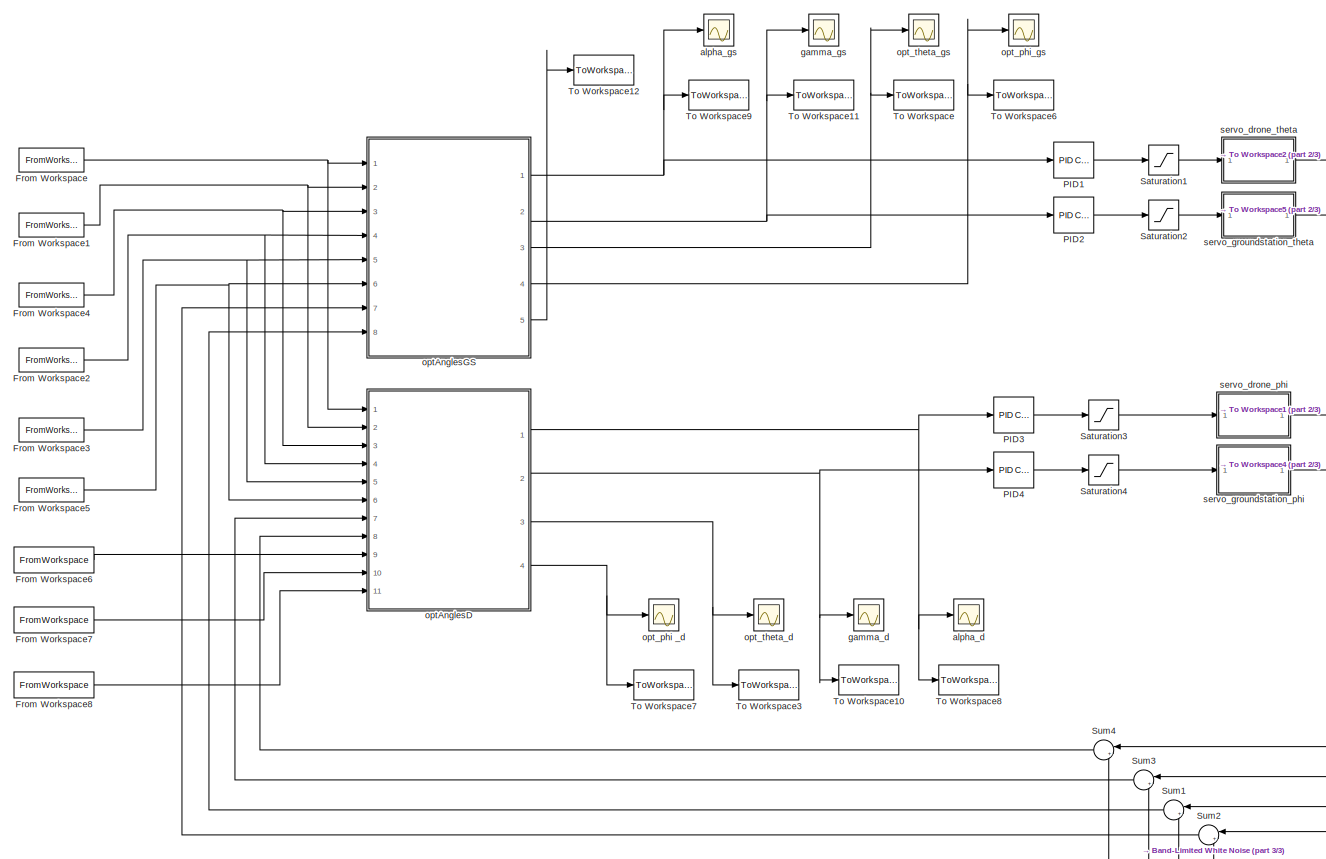
[diagram: root canvas - part 1/3, most of the canvas]
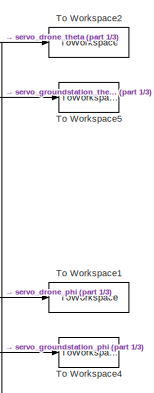
[diagram: root canvas - part 2/3, middle right region]
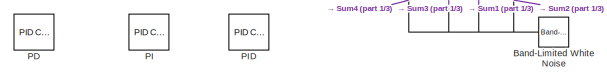
[diagram: root canvas - part 3/3, bottom center region]
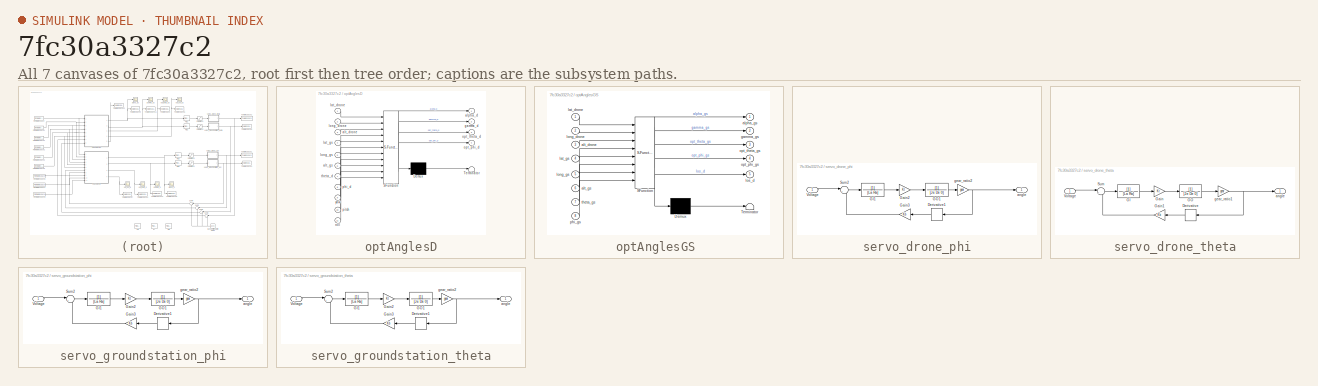
[diagram: thumbnail index - all 7 canvases of the model, root first then tree order]
MODEL slx_7fc30a3327c2
KIND model
CONFIG AbsTol = auto
CONFIG FixedStep = auto
CONFIG MaxStep = auto
CONFIG MinStep = auto
CONFIG RelTol = 1e-3
CONFIG SampleTimeConstraint = Unconstrained
CONFIG Solver = VariableStepAuto
CONFIG SolverMode = Auto
CONFIG SolverName = VariableStepAuto
CONFIG StartTime = 0.0
CONFIG StopTime = 10.0
BLOCK [Reference] Band-Limited White Noise  REF=simulink/Sources/Band-Limited
White Noise
  Ports = [0, 1]
  SourceBlock = simulink/Sources/Band-Limited\nWhite Noise
  SourceType = Band-Limited White Noise.
BLOCK [FromWorkspace] From Workspace
  SampleTime = 1
  VariableName = [time' lat_drone']
  ZeroCross = on
BLOCK [FromWorkspace] From Workspace1
  OutDataTypeStr = double
  SampleTime = 1
  VariableName = [time' long_drone']
  ZeroCross = on
BLOCK [FromWorkspace] From Workspace2
  SampleTime = 1
  VariableName = [time' lat_gs']
  ZeroCross = on
BLOCK [FromWorkspace] From Workspace3
  OutDataTypeStr = double
  SampleTime = 1
  VariableName = [time' long_gs']
  ZeroCross = on
BLOCK [FromWorkspace] From Workspace4
  OutDataTypeStr = double
  SampleTime = 1
  VariableName = [time' alt_drone']
  ZeroCross = on
BLOCK [FromWorkspace] From Workspace5
  OutDataTypeStr = double
  SampleTime = 1
  VariableName = [time' alt_gs']
  ZeroCross = on
BLOCK [FromWorkspace] From Workspace6
  SampleTime = 1
  VariableName = [time' yawAngle']
  ZeroCross = on
BLOCK [FromWorkspace] From Workspace7
  SampleTime = 1
  VariableName = [time' pitchAngle']
  ZeroCross = on
BLOCK [FromWorkspace] From Workspace8
  SampleTime = 1
  VariableName = [time' rollAngle']
  ZeroCross = on
BLOCK [Reference] PD  REF=simulink/Continuous/PID Controller
  Ports = [1, 1]
  SourceBlock = simulink/Continuous/PID Controller
  SourceType = PID 1dof
BLOCK [Reference] PI  REF=simulink/Continuous/PID Controller
  Ports = [1, 1]
  SourceBlock = simulink/Continuous/PID Controller
  SourceType = PID 1dof
BLOCK [Reference] PID  REF=simulink/Continuous/PID Controller
  Ports = [1, 1]
  SourceBlock = simulink/Continuous/PID Controller
  SourceType = PID 1dof
BLOCK [Reference] PID1  REF=simulink/Continuous/PID Controller
  Ports = [1, 1]
  SourceBlock = simulink/Continuous/PID Controller
  SourceType = PID 1dof
BLOCK [Reference] PID2  REF=simulink/Continuous/PID Controller
  Ports = [1, 1]
  SourceBlock = simulink/Continuous/PID Controller
  SourceType = PID 1dof
BLOCK [Reference] PID3  REF=simulink/Continuous/PID Controller
  Ports = [1, 1]
  SourceBlock = simulink/Continuous/PID Controller
  SourceType = PID 1dof
BLOCK [Reference] PID4  REF=simulink/Continuous/PID Controller
  Ports = [1, 1]
  SourceBlock = simulink/Continuous/PID Controller
  SourceType = PID 1dof
BLOCK [Saturate] Saturation1
  InputPortMap = u0
  LowerLimit = lowSat
  Ports = [1, 1]
  UpperLimit = upSat
BLOCK [Saturate] Saturation2
  InputPortMap = u0
  LowerLimit = lowSat
  Ports = [1, 1]
  UpperLimit = upSat
BLOCK [Saturate] Saturation3
  InputPortMap = u0
  LowerLimit = lowSat
  Ports = [1, 1]
  UpperLimit = upSat
BLOCK [Saturate] Saturation4
  InputPortMap = u0
  LowerLimit = lowSat
  Ports = [1, 1]
  UpperLimit = upSat
BLOCK [Sum] Sum1
  IconShape = round
  InputSameDT = off
  Inputs = |++
  OutDataTypeStr = Inherit: Inherit via internal rule
  Ports = [2, 1]
  SaturateOnIntegerOverflow = off
BLOCK [Sum] Sum2
  IconShape = round
  InputSameDT = off
  Inputs = |++
  OutDataTypeStr = Inherit: Inherit via internal rule
  Ports = [2, 1]
  SaturateOnIntegerOverflow = off
BLOCK [Sum] Sum3
  IconShape = round
  InputSameDT = off
  Inputs = |++
  OutDataTypeStr = Inherit: Inherit via internal rule
  Ports = [2, 1]
  SaturateOnIntegerOverflow = off
BLOCK [Sum] Sum4
  IconShape = round
  InputSameDT = off
  Inputs = |++
  OutDataTypeStr = Inherit: Inherit via internal rule
  Ports = [2, 1]
  SaturateOnIntegerOverflow = off
BLOCK [ToWorkspace] To Workspace
  FixptAsFi = on
  MaxDataPoints = inf
  Ports = [1]
  SampleTime = -1
  Save2DSignal = 3-D array (concatenate along third dimension)
  SaveFormat = Timeseries
  VariableName = opt_theta_gs
BLOCK [ToWorkspace] To Workspace1
  FixptAsFi = on
  MaxDataPoints = inf
  Ports = [1]
  SampleTime = -1
  Save2DSignal = 3-D array (concatenate along third dimension)
  SaveFormat = Timeseries
  VariableName = theta_d_vec
BLOCK [ToWorkspace] To Workspace10
  FixptAsFi = on
  MaxDataPoints = inf
  Ports = [1]
  SampleTime = -1
  Save2DSignal = 3-D array (concatenate along third dimension)
  SaveFormat = Timeseries
  VariableName = gamma_d
BLOCK [ToWorkspace] To Workspace11
  FixptAsFi = on
  MaxDataPoints = inf
  Ports = [1]
  SampleTime = -1
  Save2DSignal = 3-D array (concatenate along third dimension)
  SaveFormat = Timeseries
  VariableName = gamma_gs
BLOCK [ToWorkspace] To Workspace12
  FixptAsFi = on
  MaxDataPoints = inf
  Ports = [1]
  SampleTime = -1
  Save2DSignal = 3-D array (concatenate along third dimension)
  SaveFormat = Timeseries
  VariableName = los_d_vec
BLOCK [ToWorkspace] To Workspace2
  FixptAsFi = on
  MaxDataPoints = inf
  Ports = [1]
  SampleTime = -1
  Save2DSignal = 3-D array (concatenate along third dimension)
  SaveFormat = Timeseries
  VariableName = theta_gs_vec
BLOCK [ToWorkspace] To Workspace3
  FixptAsFi = on
  MaxDataPoints = inf
  Ports = [1]
  SampleTime = -1
  Save2DSignal = 3-D array (concatenate along third dimension)
  SaveFormat = Timeseries
  VariableName = opt_theta_d
BLOCK [ToWorkspace] To Workspace4
  FixptAsFi = on
  MaxDataPoints = inf
  Ports = [1]
  SampleTime = -1
  Save2DSignal = 3-D array (concatenate along third dimension)
  SaveFormat = Timeseries
  VariableName = phi_d_vec
BLOCK [ToWorkspace] To Workspace5
  FixptAsFi = on
  MaxDataPoints = inf
  Ports = [1]
  SampleTime = -1
  Save2DSignal = 3-D array (concatenate along third dimension)
  SaveFormat = Timeseries
  VariableName = phi_gs_vec
BLOCK [ToWorkspace] To Workspace6
  FixptAsFi = on
  MaxDataPoints = inf
  Ports = [1]
  SampleTime = -1
  Save2DSignal = 3-D array (concatenate along third dimension)
  SaveFormat = Timeseries
  VariableName = opt_phi_gs
BLOCK [ToWorkspace] To Workspace7
  FixptAsFi = on
  MaxDataPoints = inf
  Ports = [1]
  SampleTime = -1
  Save2DSignal = 3-D array (concatenate along third dimension)
  SaveFormat = Timeseries
  VariableName = opt_phi_d
BLOCK [ToWorkspace] To Workspace8
  FixptAsFi = on
  MaxDataPoints = inf
  Ports = [1]
  SampleTime = -1
  Save2DSignal = 3-D array (concatenate along third dimension)
  SaveFormat = Timeseries
  VariableName = alpha_d
BLOCK [ToWorkspace] To Workspace9
  FixptAsFi = on
  MaxDataPoints = inf
  Ports = [1]
  SampleTime = -1
  Save2DSignal = 3-D array (concatenate along third dimension)
  SaveFormat = Timeseries
  VariableName = alpha_gs
BLOCK [Scope] alpha_d
  Ports = [1]
  ScopeSpecificationString = C++SS(StrPVP('SaveName','ScopeData1'),StrPVP('LimitDataPoints','on'),StrPVP('DataFormat','Array'),StrPVP('Decimation','1'),StrPVP('BlockParamSampleInput','off'),StrPVP('SaveName','ScopeData1'),StrPVP('SaveName','ScopeData1'))
BLOCK [Scope] alpha_gs 
  Ports = [1]
  ScopeSpecificationString = C++SS(StrPVP('SaveName','ScopeData2'),StrPVP('LimitDataPoints','on'),StrPVP('DataFormat','Array'),StrPVP('Decimation','1'),StrPVP('BlockParamSampleInput','off'),StrPVP('SaveName','ScopeData2'),StrPVP('SaveName','ScopeData2'))
BLOCK [Scope] gamma_d
  Ports = [1]
  ScopeSpecificationString = C++SS(StrPVP('SaveName','ScopeData4'),StrPVP('LimitDataPoints','on'),StrPVP('DataFormat','Array'),StrPVP('Decimation','1'),StrPVP('BlockParamSampleInput','off'),StrPVP('SaveName','ScopeData3'),StrPVP('SaveName','ScopeData3'),StrPVP('SaveName','ScopeData3'))
BLOCK [Scope] gamma_gs
  Ports = [1]
  ScopeSpecificationString = C++SS(StrPVP('SaveName','ScopeData4'),StrPVP('SaveName','ScopeData5'),StrPVP('LimitDataPoints','on'),StrPVP('DataFormat','Array'),StrPVP('Decimation','1'),StrPVP('BlockParamSampleInput','off'),StrPVP('SaveName','ScopeData4'),StrPVP('SaveName','ScopeData4'),StrPVP('SaveName','ScopeData4'))
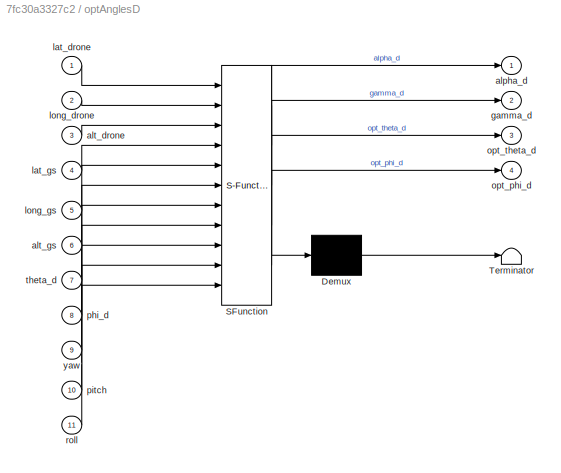
BLOCK [SubSystem] optAnglesD
  ErrorFcn = Stateflow.Translate.translate
  PermitHierarchicalResolution = ExplicitOnly
  Ports = [11, 4]
  RequestExecContextInheritance = off
  SFBlockType = MATLAB Function
  TreatAsAtomicUnit = on
  Variant = off
BLOCK [Demux] optAnglesD/ Demux 
  Outputs = 1
  Ports = [1, 1]
BLOCK [S-Function] optAnglesD/ SFunction 
  EnableBusSupport = on
  FunctionName = sf_sfun
  PortCounts = [11 5]
  Ports = [11, 5]
  SFunctionDeploymentMode = off
  Tag = Stateflow S-Function controller_v4 2
BLOCK [Terminator] optAnglesD/ Terminator 
BLOCK [Outport] optAnglesD/alpha_d
  IconDisplay = Port number
BLOCK [Inport] optAnglesD/alt_drone
  IconDisplay = Port number
  Port = 3
BLOCK [Inport] optAnglesD/alt_gs
  IconDisplay = Port number
  Port = 6
BLOCK [Outport] optAnglesD/gamma_d
  IconDisplay = Port number
  Port = 2
BLOCK [Inport] optAnglesD/lat_drone
  IconDisplay = Port number
BLOCK [Inport] optAnglesD/lat_gs
  IconDisplay = Port number
  Port = 4
BLOCK [Inport] optAnglesD/long_drone
  IconDisplay = Port number
  Port = 2
BLOCK [Inport] optAnglesD/long_gs
  IconDisplay = Port number
  Port = 5
BLOCK [Outport] optAnglesD/opt_phi_d
  IconDisplay = Port number
  Port = 4
BLOCK [Outport] optAnglesD/opt_theta_d
  IconDisplay = Port number
  Port = 3
BLOCK [Inport] optAnglesD/phi_d
  IconDisplay = Port number
  Port = 8
BLOCK [Inport] optAnglesD/pitch
  IconDisplay = Port number
  Port = 10
BLOCK [Inport] optAnglesD/roll
  IconDisplay = Port number
  Port = 11
BLOCK [Inport] optAnglesD/theta_d
  IconDisplay = Port number
  Port = 7
BLOCK [Inport] optAnglesD/yaw
  IconDisplay = Port number
  Port = 9
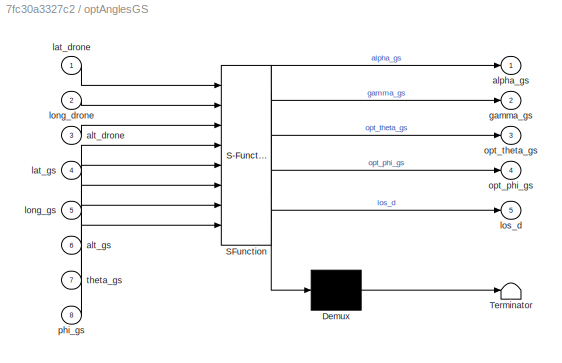
BLOCK [SubSystem] optAnglesGS 
  ErrorFcn = Stateflow.Translate.translate
  PermitHierarchicalResolution = ExplicitOnly
  Ports = [8, 5]
  RequestExecContextInheritance = off
  SFBlockType = MATLAB Function
  TreatAsAtomicUnit = on
  Variant = off
BLOCK [Demux] optAnglesGS / Demux 
  Outputs = 1
  Ports = [1, 1]
BLOCK [S-Function] optAnglesGS / SFunction 
  EnableBusSupport = on
  FunctionName = sf_sfun
  PortCounts = [8 6]
  Ports = [8, 6]
  SFunctionDeploymentMode = off
  Tag = Stateflow S-Function controller_v4 1
BLOCK [Terminator] optAnglesGS / Terminator 
BLOCK [Outport] optAnglesGS /alpha_gs
  IconDisplay = Port number
BLOCK [Inport] optAnglesGS /alt_drone
  IconDisplay = Port number
  Port = 3
BLOCK [Inport] optAnglesGS /alt_gs
  IconDisplay = Port number
  Port = 6
BLOCK [Outport] optAnglesGS /gamma_gs
  IconDisplay = Port number
  Port = 2
BLOCK [Inport] optAnglesGS /lat_drone
  IconDisplay = Port number
BLOCK [Inport] optAnglesGS /lat_gs
  IconDisplay = Port number
  Port = 4
BLOCK [Inport] optAnglesGS /long_drone
  IconDisplay = Port number
  Port = 2
BLOCK [Inport] optAnglesGS /long_gs
  IconDisplay = Port number
  Port = 5
BLOCK [Outport] optAnglesGS /los_d
  IconDisplay = Port number
  Port = 5
BLOCK [Outport] optAnglesGS /opt_phi_gs
  IconDisplay = Port number
  Port = 4
BLOCK [Outport] optAnglesGS /opt_theta_gs
  IconDisplay = Port number
  Port = 3
BLOCK [Inport] optAnglesGS /phi_gs
  IconDisplay = Port number
  Port = 8
BLOCK [Inport] optAnglesGS /theta_gs
  IconDisplay = Port number
  Port = 7
BLOCK [Scope] opt_phi _d
  Ports = [1]
  ScopeSpecificationString = C++SS(StrPVP('SaveName','ScopeData1'),StrPVP('SaveName','ScopeData2'),StrPVP('LimitDataPoints','on'),StrPVP('DataFormat','Array'),StrPVP('Decimation','1'),StrPVP('BlockParamSampleInput','off'),StrPVP('SaveName','ScopeData5'),StrPVP('SaveName','ScopeData5'),StrPVP('SaveName','ScopeData5'))
BLOCK [Scope] opt_phi_gs
  Ports = [1]
  ScopeSpecificationString = C++SS(StrPVP('SaveName','ScopeData3'),StrPVP('LimitDataPoints','on'),StrPVP('DataFormat','Array'),StrPVP('Decimation','1'),StrPVP('BlockParamSampleInput','off'),StrPVP('SaveName','ScopeData6'),StrPVP('SaveName','ScopeData6'),StrPVP('SaveName','ScopeData6'))
BLOCK [Scope] opt_theta_d 
  Ports = [1]
  ScopeSpecificationString = C++SS(StrPVP('SaveName','ScopeData1'),StrPVP('LimitDataPoints','on'),StrPVP('DataFormat','Array'),StrPVP('Decimation','1'),StrPVP('BlockParamSampleInput','off'),StrPVP('SaveName','ScopeData7'),StrPVP('SaveName','ScopeData7'),StrPVP('SaveName','ScopeData7'))
BLOCK [Scope] opt_theta_gs
  Ports = [1]
  ScopeSpecificationString = C++SS(StrPVP('SaveName','ScopeData'),StrPVP('LimitDataPoints','on'),StrPVP('DataFormat','Array'),StrPVP('Decimation','1'),StrPVP('BlockParamSampleInput','off'),StrPVP('SaveName','ScopeData'),StrPVP('SaveName','ScopeData'))
BLOCK [SubSystem] servo_drone_phi
  Ports = [1, 1]
  RequestExecContextInheritance = off
  Variant = off
BLOCK [Derivative] servo_drone_phi/Derivative1
BLOCK [TransferFcn] servo_drone_phi/GI1
  Denominator = [La Ra]
BLOCK [TransferFcn] servo_drone_phi/GO1
  Denominator = [Je De 0]
BLOCK [Gain] servo_drone_phi/Gain2
  Gain = Kt
  OutDataTypeStr = Inherit: Inherit via internal rule
  ParamDataTypeStr = Inherit: Inherit via internal rule
  SaturateOnIntegerOverflow = off
BLOCK [Gain] servo_drone_phi/Gain3
  Gain = Kb
  OutDataTypeStr = Inherit: Inherit via internal rule
  ParamDataTypeStr = Inherit: Inherit via internal rule
  SaturateOnIntegerOverflow = off
BLOCK [Sum] servo_drone_phi/Sum2
  IconShape = round
  InputSameDT = off
  Inputs = |+-
  OutDataTypeStr = Inherit: Inherit via internal rule
  Ports = [2, 1]
  SaturateOnIntegerOverflow = off
BLOCK [Inport] servo_drone_phi/Voltage
  IconDisplay = Port number
BLOCK [Outport] servo_drone_phi/angle
  IconDisplay = Port number
BLOCK [Gain] servo_drone_phi/gear_ratio2
  Gain = gear
  OutDataTypeStr = Inherit: Inherit via internal rule
  ParamDataTypeStr = Inherit: Inherit via internal rule
  SaturateOnIntegerOverflow = off
BLOCK [SubSystem] servo_drone_theta
  Ports = [1, 1]
  RequestExecContextInheritance = off
  Variant = off
BLOCK [Derivative] servo_drone_theta/Derivative
BLOCK [TransferFcn] servo_drone_theta/GI
  Denominator = [La Ra]
BLOCK [TransferFcn] servo_drone_theta/GO
  Denominator = [Je De 0]
BLOCK [Gain] servo_drone_theta/Gain
  Gain = Kt
  OutDataTypeStr = Inherit: Inherit via internal rule
  ParamDataTypeStr = Inherit: Inherit via internal rule
  SaturateOnIntegerOverflow = off
BLOCK [Gain] servo_drone_theta/Gain1
  Gain = Kb
  OutDataTypeStr = Inherit: Inherit via internal rule
  ParamDataTypeStr = Inherit: Inherit via internal rule
  SaturateOnIntegerOverflow = off
BLOCK [Sum] servo_drone_theta/Sum
  IconShape = round
  InputSameDT = off
  Inputs = |+-
  OutDataTypeStr = Inherit: Inherit via internal rule
  Ports = [2, 1]
  SaturateOnIntegerOverflow = off
BLOCK [Inport] servo_drone_theta/Voltage
  IconDisplay = Port number
BLOCK [Outport] servo_drone_theta/angle
  IconDisplay = Port number
BLOCK [Gain] servo_drone_theta/gear_ratio1 
  Gain = gear
  OutDataTypeStr = Inherit: Inherit via internal rule
  ParamDataTypeStr = Inherit: Inherit via internal rule
  SaturateOnIntegerOverflow = off
BLOCK [SubSystem] servo_groundstation_phi
  Ports = [1, 1]
  RequestExecContextInheritance = off
  Variant = off
BLOCK [Derivative] servo_groundstation_phi/Derivative1
BLOCK [TransferFcn] servo_groundstation_phi/GI1
  Denominator = [La Ra]
BLOCK [TransferFcn] servo_groundstation_phi/GO1
  Denominator = [Je De 0]
BLOCK [Gain] servo_groundstation_phi/Gain2
  Gain = Kt
  OutDataTypeStr = Inherit: Inherit via internal rule
  ParamDataTypeStr = Inherit: Inherit via internal rule
  SaturateOnIntegerOverflow = off
BLOCK [Gain] servo_groundstation_phi/Gain3
  Gain = Kb
  OutDataTypeStr = Inherit: Inherit via internal rule
  ParamDataTypeStr = Inherit: Inherit via internal rule
  SaturateOnIntegerOverflow = off
BLOCK [Sum] servo_groundstation_phi/Sum2
  IconShape = round
  InputSameDT = off
  Inputs = |+-
  OutDataTypeStr = Inherit: Inherit via internal rule
  Ports = [2, 1]
  SaturateOnIntegerOverflow = off
BLOCK [Inport] servo_groundstation_phi/Voltage
  IconDisplay = Port number
BLOCK [Outport] servo_groundstation_phi/angle
  IconDisplay = Port number
BLOCK [Gain] servo_groundstation_phi/gear_ratio2
  Gain = gear
  OutDataTypeStr = Inherit: Inherit via internal rule
  ParamDataTypeStr = Inherit: Inherit via internal rule
  SaturateOnIntegerOverflow = off
BLOCK [SubSystem] servo_groundstation_theta
  Ports = [1, 1]
  RequestExecContextInheritance = off
  Variant = off
BLOCK [Derivative] servo_groundstation_theta/Derivative1
BLOCK [TransferFcn] servo_groundstation_theta/GI1
  Denominator = [La Ra]
BLOCK [TransferFcn] servo_groundstation_theta/GO1
  Denominator = [Je De 0]
BLOCK [Gain] servo_groundstation_theta/Gain2
  Gain = Kt
  OutDataTypeStr = Inherit: Inherit via internal rule
  ParamDataTypeStr = Inherit: Inherit via internal rule
  SaturateOnIntegerOverflow = off
BLOCK [Gain] servo_groundstation_theta/Gain3
  Gain = Kb
  OutDataTypeStr = Inherit: Inherit via internal rule
  ParamDataTypeStr = Inherit: Inherit via internal rule
  SaturateOnIntegerOverflow = off
BLOCK [Sum] servo_groundstation_theta/Sum2
  IconShape = round
  InputSameDT = off
  Inputs = |+-
  OutDataTypeStr = Inherit: Inherit via internal rule
  Ports = [2, 1]
  SaturateOnIntegerOverflow = off
BLOCK [Inport] servo_groundstation_theta/Voltage
  IconDisplay = Port number
BLOCK [Outport] servo_groundstation_theta/angle
  IconDisplay = Port number
BLOCK [Gain] servo_groundstation_theta/gear_ratio2
  Gain = gear
  OutDataTypeStr = Inherit: Inherit via internal rule
  ParamDataTypeStr = Inherit: Inherit via internal rule
  SaturateOnIntegerOverflow = off
NET Band-Limited White Noise:1 -> Sum1:2, Sum2:2, Sum3:2, Sum4:2
NET From Workspace1:1 -> optAnglesD:2, optAnglesGS :2
NET From Workspace2:1 -> optAnglesD:4, optAnglesGS :4
NET From Workspace3:1 -> optAnglesD:5, optAnglesGS :5
NET From Workspace4:1 -> optAnglesD:3, optAnglesGS :3
NET From Workspace5:1 -> optAnglesD:6, optAnglesGS :6
LINE From Workspace6:1 -> optAnglesD:9
LINE From Workspace7:1 -> optAnglesD:10
LINE From Workspace8:1 -> optAnglesD:11
NET From Workspace:1 -> optAnglesD:1, optAnglesGS :1
LINE PID1:1 -> Saturation1:1
LINE PID2:1 -> Saturation2:1
LINE PID3:1 -> Saturation3:1
LINE PID4:1 -> Saturation4:1
LINE Saturation1:1 -> servo_drone_theta:1
LINE Saturation2:1 -> servo_groundstation_theta:1
LINE Saturation3:1 -> servo_drone_phi:1
LINE Saturation4:1 -> servo_groundstation_phi:1
LINE Sum1:1 -> optAnglesGS :8
LINE Sum2:1 -> optAnglesGS :7
LINE Sum3:1 -> optAnglesD:7
LINE Sum4:1 -> optAnglesD:8
NET optAnglesD:1 -> PID3:1, To Workspace8:1, alpha_d:1
NET optAnglesD:2 -> PID4:1, To Workspace10:1, gamma_d:1
NET optAnglesD:3 -> To Workspace3:1, opt_theta_d :1
NET optAnglesD:4 -> To Workspace7:1, opt_phi _d:1
NET optAnglesGS :1 -> PID1:1, To Workspace9:1, alpha_gs :1
NET optAnglesGS :2 -> PID2:1, To Workspace11:1, gamma_gs:1
NET optAnglesGS :3 -> To Workspace:1, opt_theta_gs:1
NET optAnglesGS :4 -> To Workspace6:1, opt_phi_gs:1
LINE optAnglesGS :5 -> To Workspace12:1
LINE servo_drone_phi/Derivative1:1 -> servo_drone_phi/Gain3:1
LINE servo_drone_phi/GI1:1 -> servo_drone_phi/Gain2:1
LINE servo_drone_phi/GO1:1 -> servo_drone_phi/gear_ratio2:1
LINE servo_drone_phi/Gain2:1 -> servo_drone_phi/GO1:1
LINE servo_drone_phi/Gain3:1 -> servo_drone_phi/Sum2:2
LINE servo_drone_phi/Sum2:1 -> servo_drone_phi/GI1:1
LINE servo_drone_phi/Voltage:1 -> servo_drone_phi/Sum2:1
NET servo_drone_phi/gear_ratio2:1 -> servo_drone_phi/Derivative1:1, servo_drone_phi/angle:1
NET servo_drone_phi:1 -> Sum3:1, To Workspace1:1
LINE servo_drone_theta/Derivative:1 -> servo_drone_theta/Gain1:1
LINE servo_drone_theta/GI:1 -> servo_drone_theta/Gain:1
LINE servo_drone_theta/GO:1 -> servo_drone_theta/gear_ratio1 :1
LINE servo_drone_theta/Gain1:1 -> servo_drone_theta/Sum:2
LINE servo_drone_theta/Gain:1 -> servo_drone_theta/GO:1
LINE servo_drone_theta/Sum:1 -> servo_drone_theta/GI:1
LINE servo_drone_theta/Voltage:1 -> servo_drone_theta/Sum:1
NET servo_drone_theta/gear_ratio1 :1 -> servo_drone_theta/Derivative:1, servo_drone_theta/angle:1
NET servo_drone_theta:1 -> Sum2:1, To Workspace2:1
LINE servo_groundstation_phi/Derivative1:1 -> servo_groundstation_phi/Gain3:1
LINE servo_groundstation_phi/GI1:1 -> servo_groundstation_phi/Gain2:1
LINE servo_groundstation_phi/GO1:1 -> servo_groundstation_phi/gear_ratio2:1
LINE servo_groundstation_phi/Gain2:1 -> servo_groundstation_phi/GO1:1
LINE servo_groundstation_phi/Gain3:1 -> servo_groundstation_phi/Sum2:2
LINE servo_groundstation_phi/Sum2:1 -> servo_groundstation_phi/GI1:1
LINE servo_groundstation_phi/Voltage:1 -> servo_groundstation_phi/Sum2:1
NET servo_groundstation_phi/gear_ratio2:1 -> servo_groundstation_phi/Derivative1:1, servo_groundstation_phi/angle:1
NET servo_groundstation_phi:1 -> Sum4:1, To Workspace4:1
LINE servo_groundstation_theta/Derivative1:1 -> servo_groundstation_theta/Gain3:1
LINE servo_groundstation_theta/GI1:1 -> servo_groundstation_theta/Gain2:1
LINE servo_groundstation_theta/GO1:1 -> servo_groundstation_theta/gear_ratio2:1
LINE servo_groundstation_theta/Gain2:1 -> servo_groundstation_theta/GO1:1
LINE servo_groundstation_theta/Gain3:1 -> servo_groundstation_theta/Sum2:2
LINE servo_groundstation_theta/Sum2:1 -> servo_groundstation_theta/GI1:1
LINE servo_groundstation_theta/Voltage:1 -> servo_groundstation_theta/Sum2:1
NET servo_groundstation_theta/gear_ratio2:1 -> servo_groundstation_theta/Derivative1:1, servo_groundstation_theta/angle:1
NET servo_groundstation_theta:1 -> Sum1:1, To Workspace5:1
note: NET lines group one-source signal fan-out (src -> all destinations, sorted); 1:1 wires keep LINE
CHART optAnglesGS
 states=1 transitions=1
  STATE_LABEL 'eML_blk_kernel()'
  STATE_LABEL 'SCRIPT:\nfunction [alpha_gs,gamma_gs,opt_theta_gs,opt_phi_gs,los_d] = ...\n    optAnglesGS(lat_drone,long_drone,alt_drone,lat_gs,long_gs,alt_gs,theta_gs,phi_gs)\n%**************************************************************************\n%\n% optAnglesGS.m - CA8 - DRONES\n%\n%**************************************************************************\n%\n% Group 832 - Control and Automation Msc.\n% Aalborg ...<+1883ch>'
CHART optAnglesD states=1 transitions=1
  STATE_LABEL 'eML_blk_kernel()'
  STATE_LABEL 'SCRIPT:\nfunction [alpha_d,gamma_d,opt_theta_d,opt_phi_d] = ...\n    optAnglesD(lat_drone,long_drone,alt_drone,lat_gs,long_gs,alt_gs,...\n    theta_d,phi_d,yaw,pitch,roll)\n%**************************************************************************\n%\n% optAnglesD.m - CA8 - DRONES\n%\n%**************************************************************************\n%\n% Group 832 - Control and Automation Msc.\n%...<+1008ch>'
